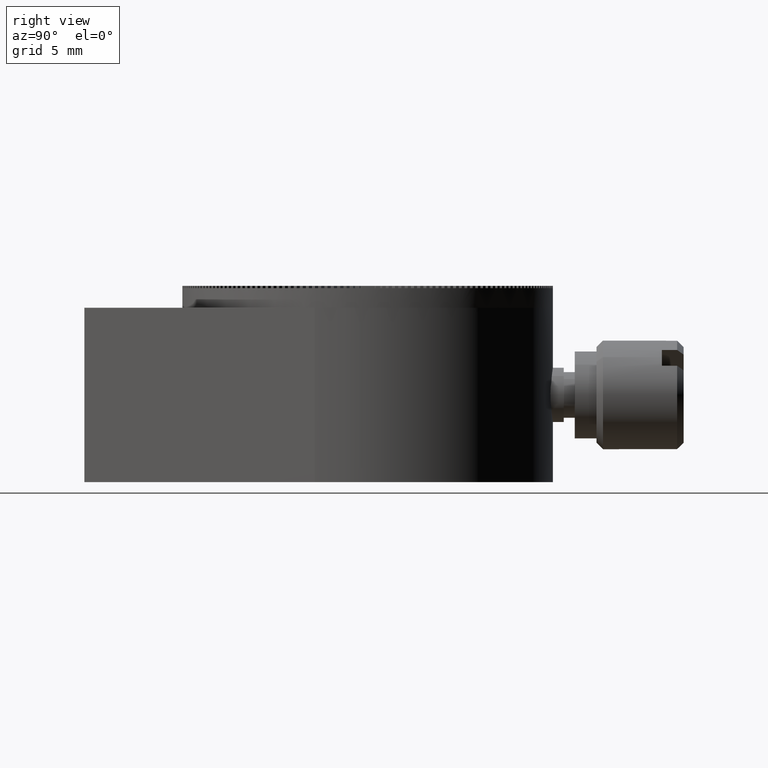
[diagram: clean part render]
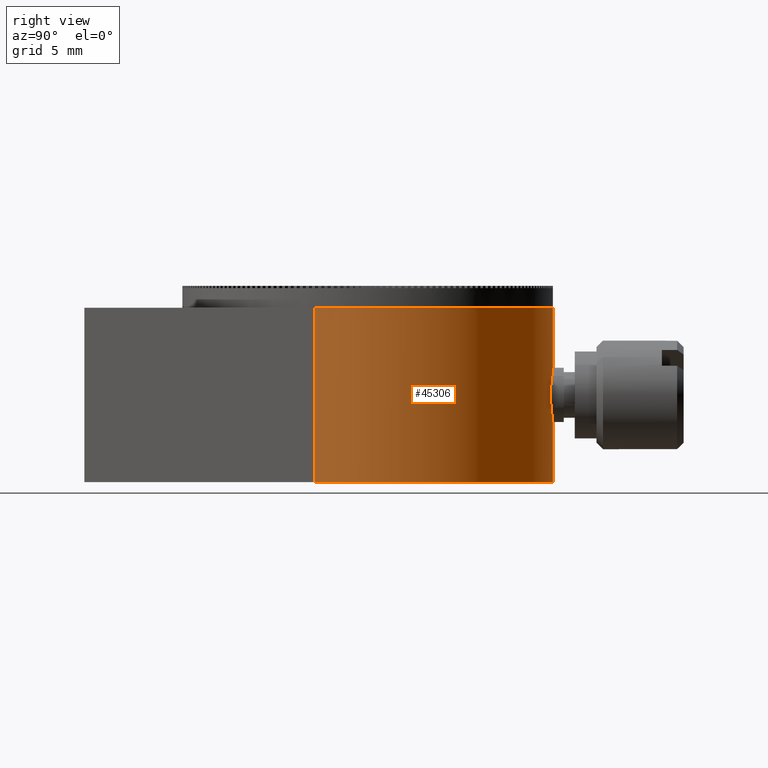
[diagram: same view with one face highlighted and labeled with its STEP entity id]
A machine part, right view. The second image highlights one B-rep face of the part: STEP entity #45306.
In plain terms, the highlighted cylindrical surface (partial cylindrical patch) has radius 8.5 mm, axis along (-0, 0, -1).
Its self-contained STEP definition (entity closure, byte-faithful):
#584 = LINE ( 'NONE', #47873, #31774 ) ;
#1005 = VERTEX_POINT ( 'NONE', #36069 ) ;
#1279 = CARTESIAN_POINT ( 'NONE',  ( 0.000000000000000000, 8.000000000000000000, 0.000000000000000000 ) ) ;
#2238 = CARTESIAN_POINT ( 'NONE',  ( 8.146965083051258105, 0.000000000000000000, 2.424244198826441821 ) ) ;
#2242 = FACE_OUTER_BOUND ( 'NONE', #32450, .T. ) ;
#2488 = VERTEX_POINT ( 'NONE', #49606 ) ;
#2893 = CARTESIAN_POINT ( 'NONE',  ( 8.146965083051258105, 8.000000000000000000, 2.424244198826441821 ) ) ;
#3438 = B_SPLINE_CURVE_WITH_KNOTS ( 'NONE', 3,
 ( #62480, #33579, #38079, #32949, #4374, #29072, #53465, #23961, #28449, #63425 ),
 .UNSPECIFIED., .F., .F.,
 ( 4, 2, 2, 2, 4 ),
 ( 0.004811649761180886858, 0.005212312652729454016, 0.005612975544278020305, 0.006013638435826586595, 0.006414301327375153752 ),
 .UNSPECIFIED. ) ;
#4135 = VERTEX_POINT ( 'NONE', #6535 ) ;
#4374 = CARTESIAN_POINT ( 'NONE',  ( 0.6301119845878367931, 3.180605216276515268, -8.477142323825272996 ) ) ;
#4895 = VECTOR ( 'NONE', #44531, 1000.000000000000000 ) ;
#5151 = CARTESIAN_POINT ( 'NONE',  ( -1.232478612686890334E-12, 5.025000000010680701, -8.500000000001289635 ) ) ;
#5462 = DIRECTION ( 'NONE',  ( 0.000000000000000000, 1.000000000000000000, 0.000000000000000000 ) ) ;
#5801 = VERTEX_POINT ( 'NONE', #28488 ) ;
#6098 = DIRECTION ( 'NONE',  ( 0.000000000000000000, 0.000000000000000000, 1.000000000000000000 ) ) ;
#6535 = CARTESIAN_POINT ( 'NONE',  ( 8.146965083051258105, 8.000000000000000000, 2.424244198826441821 ) ) ;
#8331 = CARTESIAN_POINT ( 'NONE',  ( 1.024999999999998135, 4.000000000000000000, -8.437972209008515634 ) ) ;
#9335 = CARTESIAN_POINT ( 'NONE',  ( 0.8190400725229738388, 4.630600694441652898, -8.460979553074480464 ) ) ;
#10219 = DIRECTION ( 'NONE',  ( -0.000000000000000000, -1.000000000000000000, -0.000000000000000000 ) ) ;
#10597 = AXIS2_PLACEMENT_3D ( 'NONE', #25980, #5462, #6098 ) ;
#11435 = VERTEX_POINT ( 'NONE', #36643 ) ;
#15508 = CIRCLE ( 'NONE', #40090, 8.500000000000001776 ) ;
#15976 = EDGE_CURVE ( 'NONE', #5801, #1005, #21102, .T. ) ;
#17954 = ORIENTED_EDGE ( 'NONE', *, *, #47312, .F. ) ;
#18851 = CARTESIAN_POINT ( 'NONE',  ( 0.000000000000000000, 8.000000000000000000, 0.000000000000000000 ) ) ;
#21102 = LINE ( 'NONE', #40662, #4895 ) ;
#21798 = ORIENTED_EDGE ( 'NONE', *, *, #15976, .F. ) ;
#23093 = LINE ( 'NONE', #2893, #60451 ) ;
#23961 = CARTESIAN_POINT ( 'NONE',  ( 0.9977342758058425076, 3.729906096140450877, -8.441396791948976741 ) ) ;
#24102 = CARTESIAN_POINT ( 'NONE',  ( 0.6299767071645518968, 4.819520118519883489, -8.477153471913375427 ) ) ;
#24685 = AXIS2_PLACEMENT_3D ( 'NONE', #1279, #35617, #26310 ) ;
#25072 = ORIENTED_EDGE ( 'NONE', *, *, #55614, .T. ) ;
#25980 = CARTESIAN_POINT ( 'NONE',  ( 0.000000000000000000, 0.000000000000000000, 0.000000000000000000 ) ) ;
#26310 = DIRECTION ( 'NONE',  ( 0.000000000000000000, 0.000000000000000000, -1.000000000000000000 ) ) ;
#28449 = CARTESIAN_POINT ( 'NONE',  ( 1.024999999999998135, 3.864513093044047665, -8.437972209008515634 ) ) ;
#28488 = CARTESIAN_POINT ( 'NONE',  ( 3.606840077208035911E-17, 2.975000000000001865, -8.500000000000001776 ) ) ;
#28907 = CARTESIAN_POINT ( 'NONE',  ( 0.2689052073058010861, 4.998072021051291003, -8.496643062500428556 ) ) ;
#29072 = CARTESIAN_POINT ( 'NONE',  ( 0.8189804100126579778, 3.369349532046493234, -8.460984232317564135 ) ) ;
#29538 = CARTESIAN_POINT ( 'NONE',  ( 0.1338783046320458081, 5.025000000000239275, -8.500000000000031974 ) ) ;
#29628 = EDGE_CURVE ( 'NONE', #4135, #35146, #23093, .T. ) ;
#29846 = CARTESIAN_POINT ( 'NONE',  ( 0.8952407133372780601, 4.516943503653255476, -8.452882940019236457 ) ) ;
#30544 = EDGE_CURVE ( 'NONE', #2488, #11435, #584, .T. ) ;
#31774 = VECTOR ( 'NONE', #10219, 1000.000000000000000 ) ;
#32450 = EDGE_LOOP ( 'NONE', ( #48282, #17954, #51748, #44329, #21798, #25072, #42712 ) ) ;
#32949 = CARTESIAN_POINT ( 'NONE',  ( 0.5165021157031440824, 3.104524554138945902, -8.485201313050916738 ) ) ;
#33579 = CARTESIAN_POINT ( 'NONE',  ( 0.1354718159975519254, 2.975000000000001865, -8.500000000000003553 ) ) ;
#34919 = EDGE_CURVE ( 'NONE', #35146, #1005, #47481, .T. ) ;
#35146 = VERTEX_POINT ( 'NONE', #2238 ) ;
#35617 = DIRECTION ( 'NONE',  ( -0.000000000000000000, -1.000000000000000000, -0.000000000000000000 ) ) ;
#35932 = CYLINDRICAL_SURFACE ( 'NONE', #24685, 8.500000000000001776 ) ;
#36069 = CARTESIAN_POINT ( 'NONE',  ( 0.000000000000000000, 0.000000000000000000, -8.500000000000001776 ) ) ;
#36643 = CARTESIAN_POINT ( 'NONE',  ( -1.232478612686890334E-12, 5.025000000010680701, -8.500000000001289635 ) ) ;
#38079 = CARTESIAN_POINT ( 'NONE',  ( 0.2684465386873030046, 3.001707875653282453, -8.496667123901803009 ) ) ;
#40090 = AXIS2_PLACEMENT_3D ( 'NONE', #18851, #48976, #54114 ) ;
#40662 = CARTESIAN_POINT ( 'NONE',  ( 0.000000000000000000, 8.000000000000000000, -8.500000000000001776 ) ) ;
#42712 = ORIENTED_EDGE ( 'NONE', *, *, #62830, .T. ) ;
#44329 = ORIENTED_EDGE ( 'NONE', *, *, #34919, .T. ) ;
#44531 = DIRECTION ( 'NONE',  ( -0.000000000000000000, -1.000000000000000000, -0.000000000000000000 ) ) ;
#45306 = ADVANCED_FACE ( 'NONE', ( #2242 ), #35932, .T. ) ;
#47312 = EDGE_CURVE ( 'NONE', #4135, #2488, #15508, .T. ) ;
#47481 = CIRCLE ( 'NONE', #10597, 8.500000000000001776 ) ;
#47873 = CARTESIAN_POINT ( 'NONE',  ( 0.000000000000000000, 8.000000000000000000, -8.500000000000001776 ) ) ;
#48282 = ORIENTED_EDGE ( 'NONE', *, *, #30544, .F. ) ;
#48976 = DIRECTION ( 'NONE',  ( 0.000000000000000000, 1.000000000000000000, 0.000000000000000000 ) ) ;
#49606 = CARTESIAN_POINT ( 'NONE',  ( 0.000000000000000000, 8.000000000000000000, -8.500000000000001776 ) ) ;
#50986 = VERTEX_POINT ( 'NONE', #8331 ) ;
#51748 = ORIENTED_EDGE ( 'NONE', *, *, #29628, .T. ) ;
#53465 = CARTESIAN_POINT ( 'NONE',  ( 0.8953510846329870709, 3.483501367604488141, -8.452869330558161920 ) ) ;
#53603 = CARTESIAN_POINT ( 'NONE',  ( 1.024999999999998135, 4.135612897719174619, -8.437972209008515634 ) ) ;
#54114 = DIRECTION ( 'NONE',  ( 0.000000000000000000, 0.000000000000000000, 1.000000000000000000 ) ) ;
#54235 = CARTESIAN_POINT ( 'NONE',  ( 0.9982477254609180006, 4.268678245114942094, -8.441338010712341244 ) ) ;
#55614 = EDGE_CURVE ( 'NONE', #5801, #50986, #3438, .T. ) ;
#58055 = DIRECTION ( 'NONE',  ( -0.000000000000000000, -1.000000000000000000, -0.000000000000000000 ) ) ;
#58435 = CARTESIAN_POINT ( 'NONE',  ( 1.024999999999998135, 4.000000000000000000, -8.437972209008515634 ) ) ;
#59381 = CARTESIAN_POINT ( 'NONE',  ( 0.5156508629027283241, 4.895858223888835070, -8.485243516225127181 ) ) ;
#60029 = B_SPLINE_CURVE_WITH_KNOTS ( 'NONE', 3,
 ( #58435, #53603, #54235, #29846, #9335, #24102, #59381, #28907, #29538, #5151 ),
 .UNSPECIFIED., .F., .F.,
 ( 4, 2, 2, 2, 4 ),
 ( 0.000000000000000000, 0.0004010354723730580936, 0.0008020709447461161871, 0.001203106417119174281, 0.001604141889492231941 ),
 .UNSPECIFIED. ) ;
#60451 = VECTOR ( 'NONE', #58055, 1000.000000000000000 ) ;
#62480 = CARTESIAN_POINT ( 'NONE',  ( 3.606840077208035911E-17, 2.975000000000001865, -8.500000000000001776 ) ) ;
#62830 = EDGE_CURVE ( 'NONE', #50986, #11435, #60029, .T. ) ;
#63425 = CARTESIAN_POINT ( 'NONE',  ( 1.024999999999998135, 4.000000000000000000, -8.437972209008515634 ) ) ;